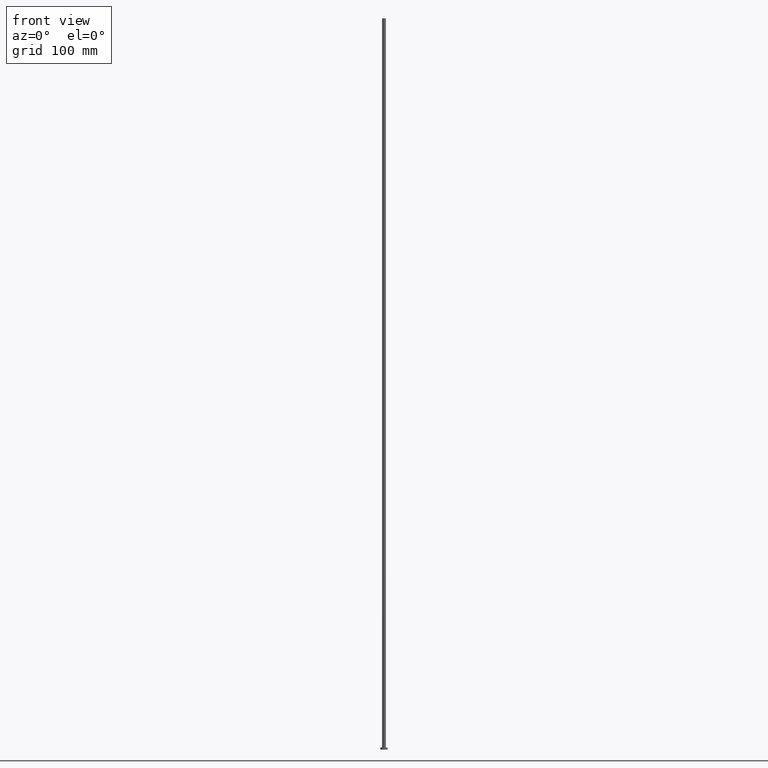
[diagram: clean part render]
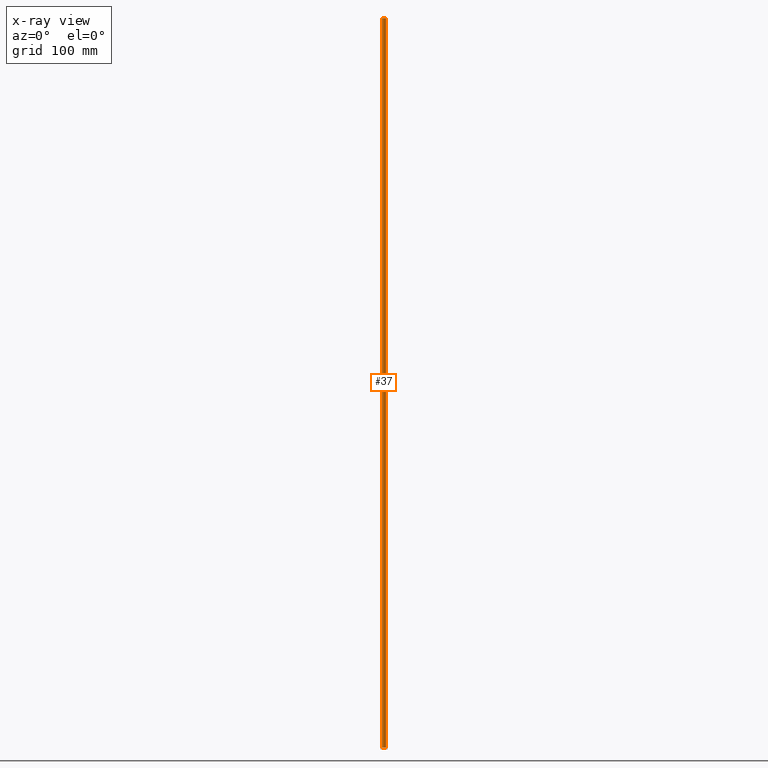
[diagram: x-ray — body ghosted, one internal face saturated and labeled with its STEP entity id]
A machine part, front view, then the same camera in x-ray: the body is ghosted and one INTERNAL B-rep face — a face not visible from any outside direction — is saturated and labeled: STEP entity #37.
In plain terms, the highlighted cylindrical surface (edge-blend (fillet) strip) has radius 2.5 mm, axis along (-0, -0, -1).
Its self-contained STEP definition (entity closure, byte-faithful):
#1 = DIRECTION ( 'NONE',  ( -0.000000000000000000, -0.000000000000000000, -1.000000000000000000 ) ) ;
#9 = AXIS2_PLACEMENT_3D ( 'NONE', #173, #243, #71 ) ;
#22 = VERTEX_POINT ( 'NONE', #224 ) ;
#25 = CARTESIAN_POINT ( 'NONE',  ( -2.500000000000000000, 0.000000000000000000, 1000.000000000000000 ) ) ;
#31 = CARTESIAN_POINT ( 'NONE',  ( 2.500000000000000000, 3.061616997868383141E-16, 1000.000000000000000 ) ) ;
#32 = CARTESIAN_POINT ( 'NONE',  ( 0.000000000000000000, 0.000000000000000000, 3.000000000000000000 ) ) ;
#36 = CIRCLE ( 'NONE', #102, 2.500000000000000000 ) ;
#37 = ADVANCED_FACE ( 'NONE', ( #128 ), #184, .T. ) ;
#38 = CARTESIAN_POINT ( 'NONE',  ( 2.500000000000000000, 3.061616997868383141E-16, 1000.000000000000000 ) ) ;
#39 = VECTOR ( 'NONE', #1, 1000.000000000000000 ) ;
#45 = VERTEX_POINT ( 'NONE', #231 ) ;
#52 = VECTOR ( 'NONE', #132, 1000.000000000000000 ) ;
#62 = EDGE_LOOP ( 'NONE', ( #185, #252, #203, #143 ) ) ;
#70 = DIRECTION ( 'NONE',  ( 0.000000000000000000, 0.000000000000000000, 1.000000000000000000 ) ) ;
#71 = DIRECTION ( 'NONE',  ( 1.000000000000000000, 0.000000000000000000, 0.000000000000000000 ) ) ;
#72 = AXIS2_PLACEMENT_3D ( 'NONE', #81, #83, #165 ) ;
#80 = EDGE_CURVE ( 'NONE', #45, #22, #213, .T. ) ;
#81 = CARTESIAN_POINT ( 'NONE',  ( 0.000000000000000000, 0.000000000000000000, 1000.000000000000000 ) ) ;
#83 = DIRECTION ( 'NONE',  ( -0.000000000000000000, -0.000000000000000000, -1.000000000000000000 ) ) ;
#102 = AXIS2_PLACEMENT_3D ( 'NONE', #32, #70, #155 ) ;
#104 = VERTEX_POINT ( 'NONE', #38 ) ;
#128 = FACE_OUTER_BOUND ( 'NONE', #62, .T. ) ;
#129 = CIRCLE ( 'NONE', #9, 2.500000000000000000 ) ;
#132 = DIRECTION ( 'NONE',  ( -0.000000000000000000, -0.000000000000000000, -1.000000000000000000 ) ) ;
#134 = EDGE_CURVE ( 'NONE', #104, #45, #129, .T. ) ;
#143 = ORIENTED_EDGE ( 'NONE', *, *, #80, .F. ) ;
#155 = DIRECTION ( 'NONE',  ( 1.000000000000000000, 0.000000000000000000, 0.000000000000000000 ) ) ;
#165 = DIRECTION ( 'NONE',  ( -1.000000000000000000, 0.000000000000000000, 0.000000000000000000 ) ) ;
#173 = CARTESIAN_POINT ( 'NONE',  ( 0.000000000000000000, 0.000000000000000000, 1000.000000000000000 ) ) ;
#184 = CYLINDRICAL_SURFACE ( 'NONE', #72, 2.500000000000000000 ) ;
#185 = ORIENTED_EDGE ( 'NONE', *, *, #134, .F. ) ;
#186 = LINE ( 'NONE', #31, #52 ) ;
#191 = EDGE_CURVE ( 'NONE', #239, #22, #36, .T. ) ;
#203 = ORIENTED_EDGE ( 'NONE', *, *, #191, .T. ) ;
#204 = EDGE_CURVE ( 'NONE', #104, #239, #186, .T. ) ;
#213 = LINE ( 'NONE', #25, #39 ) ;
#224 = CARTESIAN_POINT ( 'NONE',  ( -2.500000000000000000, 0.000000000000000000, 3.000000000000000000 ) ) ;
#231 = CARTESIAN_POINT ( 'NONE',  ( -2.500000000000000000, 0.000000000000000000, 1000.000000000000000 ) ) ;
#234 = CARTESIAN_POINT ( 'NONE',  ( 2.500000000000000000, 3.061616997868383141E-16, 3.000000000000000000 ) ) ;
#239 = VERTEX_POINT ( 'NONE', #234 ) ;
#243 = DIRECTION ( 'NONE',  ( 0.000000000000000000, 0.000000000000000000, 1.000000000000000000 ) ) ;
#252 = ORIENTED_EDGE ( 'NONE', *, *, #204, .T. ) ;